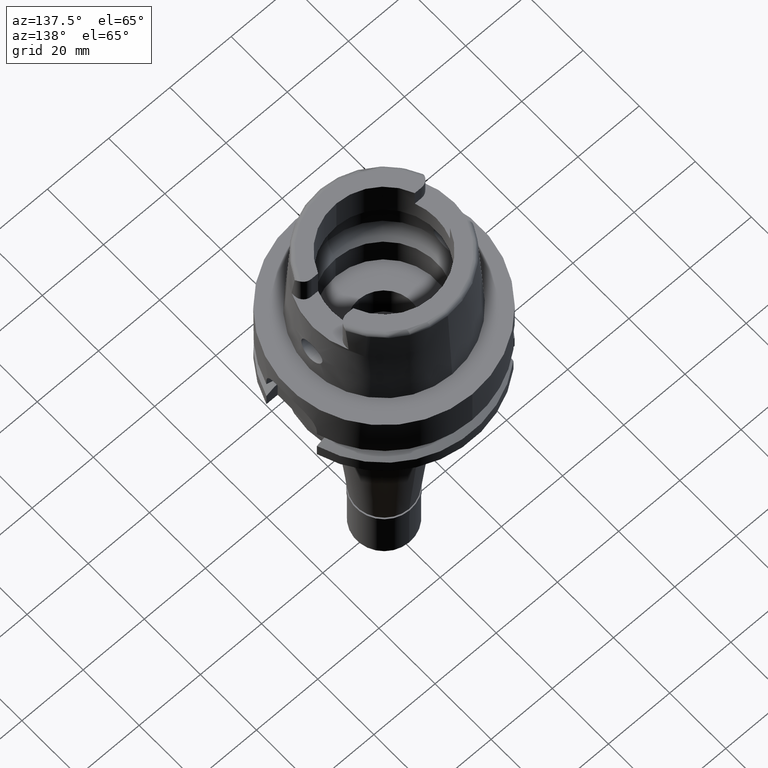
[diagram: clean part render]
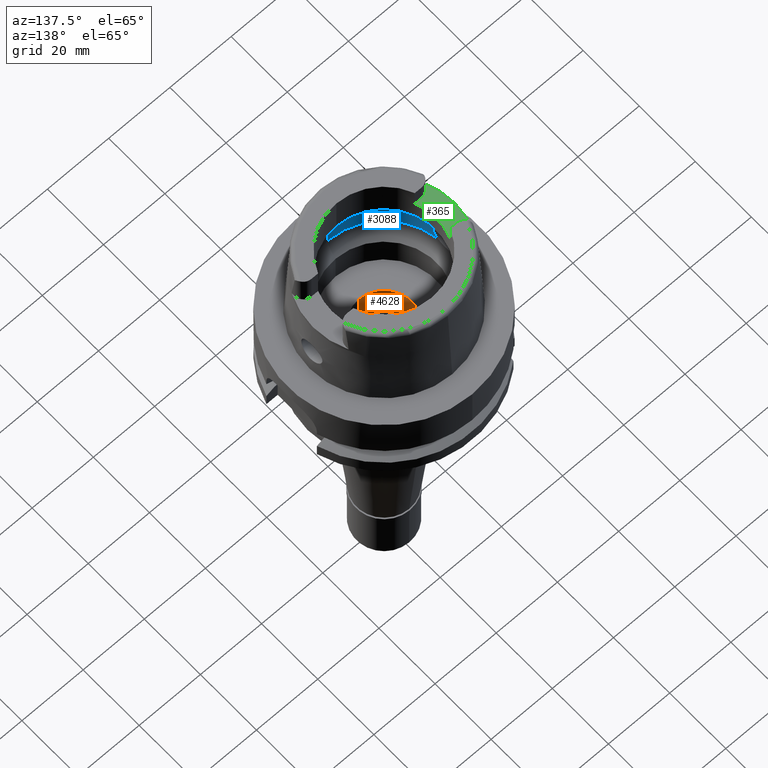
[diagram: same view with three faces highlighted in distinct colors, each labeled with its STEP entity id]
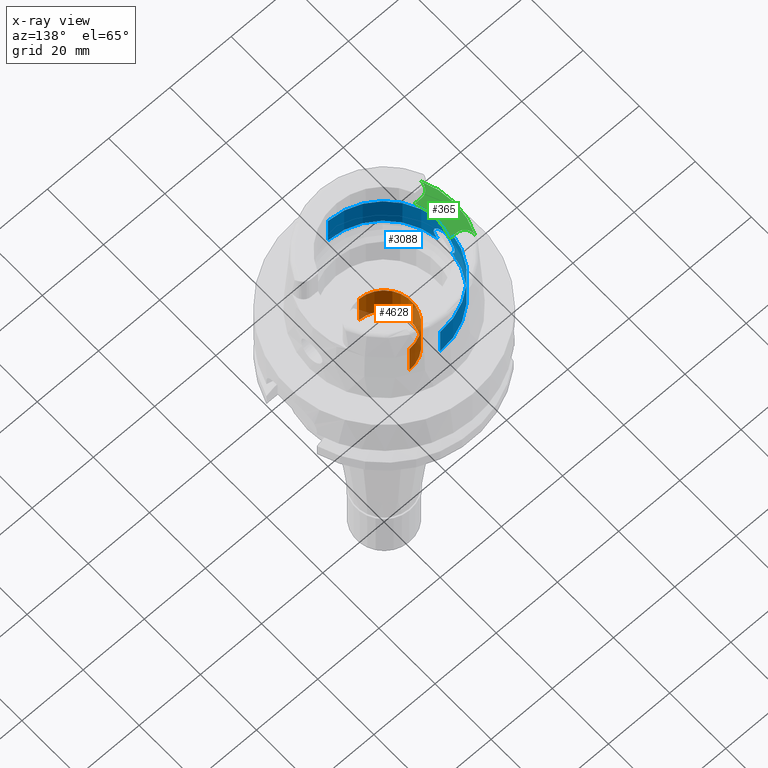
[diagram: x-ray of the same camera — body ghosted, the three highlighted faces saturated]
A machine part, auxiliary view with three faces highlighted in distinct colors.
The next image is the same camera in x-ray (body ghosted, the three faces saturated) — at least one of them is partly hidden behind the body in this view.
Their STEP definitions:

[orange] entity #4628 — the highlighted cylindrical surface (partial cylindrical patch) has radius 9 mm, axis along (0, 0, -1).
#85 = DIRECTION ( 'NONE',  ( 0.0000000000000000000, 0.0000000000000000000, -1.000000000000000000 ) ) ;
#188 = EDGE_CURVE ( 'NONE', #3180, #2209, #3613, .T. ) ;
#528 = DIRECTION ( 'NONE',  ( 0.0000000000000000000, 1.000000000000000000, 0.0000000000000000000 ) ) ;
#610 = DIRECTION ( 'NONE',  ( 0.0000000000000000000, 0.0000000000000000000, 1.000000000000000000 ) ) ;
#830 = AXIS2_PLACEMENT_3D ( 'NONE', #5081, #85, #4170 ) ;
#845 = AXIS2_PLACEMENT_3D ( 'NONE', #3106, #610, #528 ) ;
#953 = CARTESIAN_POINT ( 'NONE',  ( 0.0000000000000000000, -9.000000000000000000, -9.950000000000001066 ) ) ;
#1038 = LINE ( 'NONE', #2178, #4505 ) ;
#1128 = ORIENTED_EDGE ( 'NONE', *, *, #3369, .T. ) ;
#1208 = EDGE_CURVE ( 'NONE', #4342, #2209, #3269, .T. ) ;
#1300 = EDGE_CURVE ( 'NONE', #5235, #4342, #1038, .T. ) ;
#1314 = DIRECTION ( 'NONE',  ( 0.0000000000000000000, 0.0000000000000000000, -1.000000000000000000 ) ) ;
#1366 = CYLINDRICAL_SURFACE ( 'NONE', #830, 9.000000000000000000 ) ;
#1381 = EDGE_LOOP ( 'NONE', ( #2615, #3501, #1128, #2789 ) ) ;
#2178 = CARTESIAN_POINT ( 'NONE',  ( 0.0000000000000000000, 9.000000000000000000, -21.94999999999999929 ) ) ;
#2209 = VERTEX_POINT ( 'NONE', #953 ) ;
#2217 = VECTOR ( 'NONE', #5291, 1000.000000000000000 ) ;
#2297 = CARTESIAN_POINT ( 'NONE',  ( 0.0000000000000000000, -9.000000000000000000, -21.94999999999999929 ) ) ;
#2481 = CIRCLE ( 'NONE', #2834, 9.000000000000000000 ) ;
#2528 = DIRECTION ( 'NONE',  ( 0.0000000000000000000, -1.000000000000000000, 0.0000000000000000000 ) ) ;
#2615 = ORIENTED_EDGE ( 'NONE', *, *, #1208, .T. ) ;
#2789 = ORIENTED_EDGE ( 'NONE', *, *, #1300, .T. ) ;
#2834 = AXIS2_PLACEMENT_3D ( 'NONE', #5053, #1314, #2528 ) ;
#2890 = CARTESIAN_POINT ( 'NONE',  ( 0.0000000000000000000, 9.000000000000000000, -21.94999999999999929 ) ) ;
#3106 = CARTESIAN_POINT ( 'NONE',  ( 0.0000000000000000000, 0.0000000000000000000, -9.950000000000001066 ) ) ;
#3180 = VERTEX_POINT ( 'NONE', #4691 ) ;
#3269 = CIRCLE ( 'NONE', #845, 9.000000000000000000 ) ;
#3369 = EDGE_CURVE ( 'NONE', #3180, #5235, #2481, .T. ) ;
#3477 = FACE_OUTER_BOUND ( 'NONE', #1381, .T. ) ;
#3501 = ORIENTED_EDGE ( 'NONE', *, *, #188, .F. ) ;
#3613 = LINE ( 'NONE', #2297, #2217 ) ;
#3651 = CARTESIAN_POINT ( 'NONE',  ( 0.0000000000000000000, 9.000000000000000000, -9.950000000000001066 ) ) ;
#3874 = DIRECTION ( 'NONE',  ( 0.0000000000000000000, 0.0000000000000000000, 1.000000000000000000 ) ) ;
#4170 = DIRECTION ( 'NONE',  ( 0.0000000000000000000, -1.000000000000000000, 0.0000000000000000000 ) ) ;
#4342 = VERTEX_POINT ( 'NONE', #3651 ) ;
#4505 = VECTOR ( 'NONE', #3874, 1000.000000000000000 ) ;
#4628 = ADVANCED_FACE ( 'NONE', ( #3477 ), #1366, .F. ) ;
#4691 = CARTESIAN_POINT ( 'NONE',  ( 0.0000000000000000000, -9.000000000000000000, -21.94999999999999929 ) ) ;
#5053 = CARTESIAN_POINT ( 'NONE',  ( 0.0000000000000000000, 0.0000000000000000000, -21.94999999999999929 ) ) ;
#5081 = CARTESIAN_POINT ( 'NONE',  ( 0.0000000000000000000, 0.0000000000000000000, 39.37000000000000455 ) ) ;
#5235 = VERTEX_POINT ( 'NONE', #2890 ) ;
#5291 = DIRECTION ( 'NONE',  ( 0.0000000000000000000, 0.0000000000000000000, 1.000000000000000000 ) ) ;

[blue] entity #3088 — the highlighted cylindrical surface (partial cylindrical patch) has radius 20 mm, axis along (0, 0, -1).
#5 = CARTESIAN_POINT ( 'NONE',  ( -19.66196024749880777, -3.661720070425486639, 8.190782839368196733 ) ) ;
#19 = CARTESIAN_POINT ( 'NONE',  ( -19.92158658099085500, 1.820136556152619489, 12.29994162937887836 ) ) ;
#27 = CARTESIAN_POINT ( 'NONE',  ( -19.89436833451610553, -2.053045156930961124, 12.13826361835606704 ) ) ;
#51 = CARTESIAN_POINT ( 'NONE',  ( -19.73467496494282258, 3.248548794668258743, 10.87574576924577130 ) ) ;
#60 = CARTESIAN_POINT ( 'NONE',  ( -19.72028480744285872, -3.333920895591516942, 7.282455604707831043 ) ) ;
#80 = CARTESIAN_POINT ( 'NONE',  ( -19.77935155496618336, 2.962756445005714223, 11.29885090703217365 ) ) ;
#86 = CARTESIAN_POINT ( 'NONE',  ( -19.97160743513772374, -1.064924551475929348, 12.59563355532840667 ) ) ;
#88 = ORIENTED_EDGE ( 'NONE', *, *, #2963, .T. ) ;
#105 = CARTESIAN_POINT ( 'NONE',  ( -19.85086403912583108, 2.430644520605069747, 11.85718513685992193 ) ) ;
#131 = FACE_OUTER_BOUND ( 'NONE', #5334, .T. ) ;
#159 = ORIENTED_EDGE ( 'NONE', *, *, #3067, .T. ) ;
#187 = CARTESIAN_POINT ( 'NONE',  ( 0.0000000000000000000, 0.0000000000000000000, 39.37000000000000455 ) ) ;
#383 = CARTESIAN_POINT ( 'NONE',  ( -19.74139749652900733, 3.205938543897220327, 7.054631262626100963 ) ) ;
#396 = CIRCLE ( 'NONE', #1948, 20.00000000000001421 ) ;
#418 = CARTESIAN_POINT ( 'NONE',  ( -19.84575864665999845, 2.479085262491000030, 6.186348233825000875 ) ) ;
#426 = CARTESIAN_POINT ( 'NONE',  ( -19.65132276798684785, -3.723721195852286225, 9.580998649946268486 ) ) ;
#449 = CARTESIAN_POINT ( 'NONE',  ( -20.00000000000000000, 0.0000000000000000000, 12.75000000000000000 ) ) ;
#451 = CARTESIAN_POINT ( 'NONE',  ( -19.85235822213364543, -2.434144070148053007, 11.85895443194822896 ) ) ;
#470 = ORIENTED_EDGE ( 'NONE', *, *, #4164, .F. ) ;
#474 = CARTESIAN_POINT ( 'NONE',  ( -19.81689720875221639, -2.708443955307053841, 11.59535658252439561 ) ) ;
#498 = CARTESIAN_POINT ( 'NONE',  ( -19.68809426617463032, 3.518533777516454908, 10.29713710895541112 ) ) ;
#506 = CARTESIAN_POINT ( 'NONE',  ( -19.65926970904828863, -3.676378179055857398, 8.258084935742266097 ) ) ;
#519 = VERTEX_POINT ( 'NONE', #3506 ) ;
#524 = CARTESIAN_POINT ( 'NONE',  ( -19.77165548677576012, 3.013857183845654042, 11.23169622626009634 ) ) ;
#534 = CARTESIAN_POINT ( 'NONE',  ( -19.73347738950019448, -3.254522546019890328, 7.136733759208673256 ) ) ;
#551 = CARTESIAN_POINT ( 'NONE',  ( -19.74290537429587644, 3.198125380053106870, 10.96088977213625704 ) ) ;
#732 = B_SPLINE_CURVE_WITH_KNOTS ( 'NONE', 3,
 ( #418, #2067, #4502, #2012, #3183, #1204, #3683, #4854, #1599, #2447, #4111, #383, #2903, #4581, #3405, #1727, #4634, #1284, #2548, #3794, #3821, #3767, #2580, #1750, #1671, #3433, #4276, #904, #5075, #3316, #4611, #5022, #2935, #498, #2094, #879, #961, #51, #551, #4661, #2146, #524, #2964, #2116, #80, #3343, #3021, #1701, #105, #2176, #2522, #19, #4165, #5049, #1329, #3377 ),
 .UNSPECIFIED., .F., .F.,
 ( 4, 2, 2, 2, 1, 1, 1, 2, 2, 2, 2, 1, 2, 2, 2, 2, 2, 1, 1, 2, 2, 2, 2, 1, 1, 2, 2, 2, 2, 2, 2, 4 ),
 ( 0.0000000000000000000, 0.06249999999996930233, 0.09374999999995389799, 0.1093749999999459738, 0.1171874999999420880, 0.1210937499999401312, 0.1230468749999396316, 0.1240234374999396455, 0.1249999999999396594, 0.1874999999999389100, 0.2187499999999385769, 0.2343749999999382438, 0.2421874999999384104, 0.2499999999999386047, 0.3749999999999407696, 0.4374999999999415468, 0.4687499999999419353, 0.4843749999999418798, 0.4921874999999418798, 0.4960937499999418798, 0.4999999999999418243, 0.5624999999999468203, 0.5937499999999495959, 0.6093749999999509281, 0.6171874999999515943, 0.6210937499999520384, 0.6249999999999525935, 0.6874999999999603650, 0.7187499999999644729, 0.7499999999999685807, 0.8749999999999842348, 1.000000000000000000 ),
 .UNSPECIFIED. ) ;
#858 = CARTESIAN_POINT ( 'NONE',  ( -20.00000000000000000, 0.0000000000000000000, 12.75000000000000000 ) ) ;
#879 = CARTESIAN_POINT ( 'NONE',  ( -19.69945940781331473, 3.454791231581033628, 10.46684535103783809 ) ) ;
#886 = CARTESIAN_POINT ( 'NONE',  ( -19.74095328991457876, -3.208675117827837653, 7.059148282840538968 ) ) ;
#904 = CARTESIAN_POINT ( 'NONE',  ( -19.66443747691994304, 3.650826014187962265, 9.861983677059246389 ) ) ;
#910 = CARTESIAN_POINT ( 'NONE',  ( -19.81721443933112781, -2.707589484558639903, 6.387681410927736003 ) ) ;
#942 = CARTESIAN_POINT ( 'NONE',  ( -19.70155893500701438, -3.443033485245206027, 10.49835442281335318 ) ) ;
#961 = CARTESIAN_POINT ( 'NONE',  ( -19.71196256676224223, 3.384522111906027586, 10.62587697036250312 ) ) ;
#968 = CARTESIAN_POINT ( 'NONE',  ( -19.79874188325397100, -2.835848574125672705, 11.45412387156707545 ) ) ;
#1032 = DIRECTION ( 'NONE',  ( 0.0000000000000000000, -1.000000000000000000, 0.0000000000000000000 ) ) ;
#1166 = EDGE_CURVE ( 'NONE', #3409, #5042, #1515, .T. ) ;
#1204 = CARTESIAN_POINT ( 'NONE',  ( -19.75172576718740203, 3.142941349337210255, 6.954144166451294851 ) ) ;
#1261 = CARTESIAN_POINT ( 'NONE',  ( -19.74050221243378900, -3.211455829723269151, 7.063750484204940783 ) ) ;
#1284 = CARTESIAN_POINT ( 'NONE',  ( -19.68383709500267642, 3.542833394193697139, 7.767602803325093674 ) ) ;
#1291 = CARTESIAN_POINT ( 'NONE',  ( -19.98067574458150020, -0.8798093234653254768, 12.64564165222719971 ) ) ;
#1316 = CARTESIAN_POINT ( 'NONE',  ( -19.78483275663007035, -2.927859734515844803, 11.34356295429619088 ) ) ;
#1329 = CARTESIAN_POINT ( 'NONE',  ( -19.99999999999999289, 0.3697421889542340523, 12.75000000000000000 ) ) ;
#1336 = CARTESIAN_POINT ( 'NONE',  ( -19.70897051419402146, -3.400666924062230478, 7.416360639844333136 ) ) ;
#1368 = CARTESIAN_POINT ( 'NONE',  ( -19.99742343261086575, -0.3685791477801201310, 12.73657481896783672 ) ) ;
#1436 = CARTESIAN_POINT ( 'NONE',  ( 0.0000000000000000000, -20.00000000000000000, 6.186348233825000875 ) ) ;
#1465 = ORIENTED_EDGE ( 'NONE', *, *, #4123, .T. ) ;
#1466 = CARTESIAN_POINT ( 'NONE',  ( 0.0000000000000000000, 20.00000000000000000, 6.186348233825000875 ) ) ;
#1480 = CARTESIAN_POINT ( 'NONE',  ( 0.0000000000000000000, 20.00000000000000000, 17.26397459622000241 ) ) ;
#1515 = B_SPLINE_CURVE_WITH_KNOTS ( 'NONE', 3,
 ( #858, #1758, #1368, #4228, #3851, #1291, #2944, #4172, #86, #3804, #4201, #2184, #2530, #3443, #2157, #3773, #5115, #27, #3032, #2970, #4703, #1681, #451, #4259, #474, #2590, #968, #3750, #1316, #2613, #3828, #2507, #942, #3353, #426, #1734, #5031, #1657, #3325, #3412, #506, #5, #2126, #2076, #4617, #4673, #5082, #1336, #60, #2100, #534, #5001, #3385, #2997, #1261, #886, #1710, #5056, #4640, #910, #2558 ),
 .UNSPECIFIED., .F., .F.,
 ( 4, 2, 2, 1, 1, 2, 2, 2, 2, 1, 1, 2, 2, 2, 2, 2, 2, 2, 2, 2, 2, 2, 1, 2, 2, 2, 2, 1, 1, 1, 1, 2, 2, 2, 4 ),
 ( 0.0000000000000000000, 0.06249999999999843181, 0.09374999999999766853, 0.1093749999999972522, 0.1171874999999970995, 0.1210937499999970302, 0.1249999999999969469, 0.1874999999999974742, 0.2187499999999979183, 0.2343749999999980294, 0.2421874999999980294, 0.2460937499999981404, 0.2499999999999982236, 0.3125000000000015543, 0.3437500000000033862, 0.3593750000000043299, 0.3750000000000052180, 0.4375000000000093259, 0.5000000000000134337, 0.6250000000000222045, 0.6875000000000263123, 0.7187500000000280886, 0.7343750000000289768, 0.7421875000000296430, 0.7500000000000303091, 0.8125000000000363043, 0.8437500000000393019, 0.8593750000000407452, 0.8671875000000414113, 0.8710937500000418554, 0.8730468750000419664, 0.8740234375000418554, 0.8750000000000418554, 0.9375000000000209832, 1.000000000000000000 ),
 .UNSPECIFIED. ) ;
#1599 = CARTESIAN_POINT ( 'NONE',  ( -19.74408197365325535, 3.189507712982237120, 7.027753376479042302 ) ) ;
#1657 = CARTESIAN_POINT ( 'NONE',  ( -19.65056778371919677, -3.724541277720386123, 8.554018805257962654 ) ) ;
#1671 = CARTESIAN_POINT ( 'NONE',  ( -19.64342102749962748, 3.765030220294911079, 8.831896861846784574 ) ) ;
#1681 = CARTESIAN_POINT ( 'NONE',  ( -19.86957894625532717, -2.285807393788554798, 11.97888609334855303 ) ) ;
#1701 = CARTESIAN_POINT ( 'NONE',  ( -19.84200668832605885, 2.502326833197712652, 11.79461985101925769 ) ) ;
#1710 = CARTESIAN_POINT ( 'NONE',  ( -19.74741042856391360, -3.168852578877737969, 6.993359328543429676 ) ) ;
#1727 = CARTESIAN_POINT ( 'NONE',  ( -19.70827425312384307, 3.405308951745376511, 7.418193022220815891 ) ) ;
#1734 = CARTESIAN_POINT ( 'NONE',  ( -19.64540542308788318, -3.754657844809986766, 9.018281474956083343 ) ) ;
#1750 = CARTESIAN_POINT ( 'NONE',  ( -19.64954716480991692, 3.728742102114960932, 8.458464559480782796 ) ) ;
#1758 = CARTESIAN_POINT ( 'NONE',  ( -20.00000000000000000, -0.1830374027275975257, 12.75000000000000178 ) ) ;
#1779 = DIRECTION ( 'NONE',  ( 0.0000000000000000000, 0.0000000000000000000, 1.000000000000000000 ) ) ;
#1915 = VERTEX_POINT ( 'NONE', #3101 ) ;
#1948 = AXIS2_PLACEMENT_3D ( 'NONE', #3268, #2816, #3240 ) ;
#1987 = CARTESIAN_POINT ( 'NONE',  ( -19.84575864665999845, -2.479085262491000030, 6.186348233825000875 ) ) ;
#2012 = CARTESIAN_POINT ( 'NONE',  ( -19.76800539640650101, 3.041645519385683283, 6.804563479175809171 ) ) ;
#2060 = CARTESIAN_POINT ( 'NONE',  ( 0.0000000000000000000, 20.00000000000000000, 6.186348233825000875 ) ) ;
#2067 = CARTESIAN_POINT ( 'NONE',  ( -19.81720445921022744, 2.707669378195588283, 6.387751804549401058 ) ) ;
#2076 = CARTESIAN_POINT ( 'NONE',  ( -19.66489324401530681, -3.645798712243137452, 8.121881304959334358 ) ) ;
#2079 = ORIENTED_EDGE ( 'NONE', *, *, #5069, .F. ) ;
#2094 = CARTESIAN_POINT ( 'NONE',  ( -19.68897814375808153, 3.513576952984294621, 10.31048599730038617 ) ) ;
#2100 = CARTESIAN_POINT ( 'NONE',  ( -19.72618078752373094, -3.298772090235122967, 7.215285736698796804 ) ) ;
#2113 = DIRECTION ( 'NONE',  ( 0.0000000000000000000, 0.0000000000000000000, -1.000000000000000000 ) ) ;
#2116 = CARTESIAN_POINT ( 'NONE',  ( -19.77790227802251266, 2.972427968619522076, 11.28634230070763422 ) ) ;
#2126 = CARTESIAN_POINT ( 'NONE',  ( -19.66383279512244187, -3.651545459906774926, 8.146043302355408855 ) ) ;
#2128 = VERTEX_POINT ( 'NONE', #2772 ) ;
#2146 = CARTESIAN_POINT ( 'NONE',  ( -19.76315527148401685, 3.069536634647461515, 11.15533732831224434 ) ) ;
#2157 = CARTESIAN_POINT ( 'NONE',  ( -19.92059286601120149, -1.781155040627679265, 12.30151905550233060 ) ) ;
#2176 = CARTESIAN_POINT ( 'NONE',  ( -19.86862495637770465, 2.282732825389082620, 11.97668784721070345 ) ) ;
#2184 = CARTESIAN_POINT ( 'NONE',  ( -19.96014161960296462, -1.270885893305002234, 12.53204756573847156 ) ) ;
#2213 = VECTOR ( 'NONE', #3103, 1000.000000000000000 ) ;
#2258 = LINE ( 'NONE', #1436, #2213 ) ;
#2343 = AXIS2_PLACEMENT_3D ( 'NONE', #5385, #2113, #2881 ) ;
#2368 = VERTEX_POINT ( 'NONE', #1480 ) ;
#2447 = CARTESIAN_POINT ( 'NONE',  ( -19.74246152409659416, 3.199407991994077438, 7.043898020967527707 ) ) ;
#2507 = CARTESIAN_POINT ( 'NONE',  ( -19.71528923512004994, -3.361056488591420699, 10.67384906870306516 ) ) ;
#2522 = CARTESIAN_POINT ( 'NONE',  ( -19.87767235113738806, 2.205242223473267593, 12.03449459973693081 ) ) ;
#2530 = CARTESIAN_POINT ( 'NONE',  ( -19.94877727865467421, -1.438050476429465929, 12.46848411337186491 ) ) ;
#2548 = CARTESIAN_POINT ( 'NONE',  ( -19.67634535197403522, 3.583810239029153522, 7.895103173153098730 ) ) ;
#2558 = CARTESIAN_POINT ( 'NONE',  ( -19.84575864665999845, -2.479085262491000030, 6.186348233825000875 ) ) ;
#2580 = CARTESIAN_POINT ( 'NONE',  ( -19.66678412835874568, 3.635577116849903589, 8.080432954028555770 ) ) ;
#2590 = CARTESIAN_POINT ( 'NONE',  ( -19.80330195556890871, -2.804498991971097865, 11.48988885623557721 ) ) ;
#2613 = CARTESIAN_POINT ( 'NONE',  ( -19.76218569956651550, -3.070486696400240412, 11.16078934170093362 ) ) ;
#2630 = DIRECTION ( 'NONE',  ( 0.0000000000000000000, 1.000000000000000000, 0.0000000000000000000 ) ) ;
#2730 = VECTOR ( 'NONE', #4795, 1000.000000000000000 ) ;
#2772 = CARTESIAN_POINT ( 'NONE',  ( 0.0000000000000000000, -20.00000000000000000, 6.186348233825000875 ) ) ;
#2816 = DIRECTION ( 'NONE',  ( 0.0000000000000000000, 0.0000000000000000000, -1.000000000000000000 ) ) ;
#2881 = DIRECTION ( 'NONE',  ( 0.0000000000000000000, -1.000000000000000000, 0.0000000000000000000 ) ) ;
#2903 = CARTESIAN_POINT ( 'NONE',  ( -19.74119308675011197, 3.207196494403045772, 7.056705859143715287 ) ) ;
#2935 = CARTESIAN_POINT ( 'NONE',  ( -19.68662342437099255, 3.526780936312412518, 10.27454338891100605 ) ) ;
#2944 = CARTESIAN_POINT ( 'NONE',  ( -19.97753555307598461, -0.9493749229898147401, 12.62838965606890618 ) ) ;
#2963 = EDGE_CURVE ( 'NONE', #2128, #5042, #3920, .T. ) ;
#2964 = CARTESIAN_POINT ( 'NONE',  ( -19.77539119383706989, 2.989117935971723483, 11.26447855134218123 ) ) ;
#2970 = CARTESIAN_POINT ( 'NONE',  ( -19.88866688963722140, -2.107477370787168791, 12.10180777658723628 ) ) ;
#2997 = CARTESIAN_POINT ( 'NONE',  ( -19.73995366024477960, -3.214834176857670034, 7.069364884555334960 ) ) ;
#3021 = CARTESIAN_POINT ( 'NONE',  ( -19.81550395940524822, 2.709931638705325607, 11.59902467878869459 ) ) ;
#3032 = CARTESIAN_POINT ( 'NONE',  ( -19.89095883369450135, -2.085707927097196102, 12.11648757323384196 ) ) ;
#3067 = EDGE_CURVE ( 'NONE', #2368, #519, #4352, .T. ) ;
#3088 = ADVANCED_FACE ( 'NONE', ( #131 ), #3842, .F. ) ;
#3101 = CARTESIAN_POINT ( 'NONE',  ( -19.84575864665999845, 2.479085262491000030, 6.186348233825000875 ) ) ;
#3102 = DIRECTION ( 'NONE',  ( 0.0000000000000000000, 0.0000000000000000000, -1.000000000000000000 ) ) ;
#3103 = DIRECTION ( 'NONE',  ( 0.0000000000000000000, 8.659189811027998955E-14, 1.000000000000000000 ) ) ;
#3183 = CARTESIAN_POINT ( 'NONE',  ( -19.76066155450057593, 3.087763051679031978, 6.870999059455045632 ) ) ;
#3240 = DIRECTION ( 'NONE',  ( -0.9922879323327794543, 0.1239542631244973381, 0.0000000000000000000 ) ) ;
#3268 = CARTESIAN_POINT ( 'NONE',  ( 0.0000000000000000000, 0.0000000000000000000, 6.186348233825000875 ) ) ;
#3316 = CARTESIAN_POINT ( 'NONE',  ( -19.67575397191043862, 3.587661714841302807, 10.09246184363802712 ) ) ;
#3325 = CARTESIAN_POINT ( 'NONE',  ( -19.65273577250077253, -3.712391166743284732, 8.462271407313068039 ) ) ;
#3343 = CARTESIAN_POINT ( 'NONE',  ( -19.79792790476268749, 2.838396307254666073, 11.45808160370312656 ) ) ;
#3353 = CARTESIAN_POINT ( 'NONE',  ( -19.66536114596662443, -3.646001608969120955, 9.957786246994009716 ) ) ;
#3377 = CARTESIAN_POINT ( 'NONE',  ( -20.00000000000000000, 0.0000000000000000000, 12.75000000000000000 ) ) ;
#3385 = CARTESIAN_POINT ( 'NONE',  ( -19.73913269784763713, -3.219886689848268535, 7.077786526257662914 ) ) ;
#3405 = CARTESIAN_POINT ( 'NONE',  ( -19.72335944578466638, 3.317162635733305720, 7.238452612100627626 ) ) ;
#3409 = VERTEX_POINT ( 'NONE', #449 ) ;
#3412 = CARTESIAN_POINT ( 'NONE',  ( -19.65693401955254416, -3.689208492896102420, 8.325933423525599508 ) ) ;
#3433 = CARTESIAN_POINT ( 'NONE',  ( -19.64937715234364646, 3.733899912088827211, 9.394707806739083011 ) ) ;
#3443 = CARTESIAN_POINT ( 'NONE',  ( -19.92809361340097851, -1.694661713830789118, 12.34657877242477397 ) ) ;
#3506 = CARTESIAN_POINT ( 'NONE',  ( 0.0000000000000000000, -20.00000000000000000, 17.26397459622000241 ) ) ;
#3513 = LINE ( 'NONE', #1466, #2730 ) ;
#3683 = CARTESIAN_POINT ( 'NONE',  ( -19.74909383400727947, 3.158992222811245476, 6.979121475390861029 ) ) ;
#3750 = CARTESIAN_POINT ( 'NONE',  ( -19.78956509611641579, -2.897164855132418726, 11.38142749512797636 ) ) ;
#3767 = CARTESIAN_POINT ( 'NONE',  ( -19.66767022583595192, 3.630792343530946820, 8.061755777097850739 ) ) ;
#3773 = CARTESIAN_POINT ( 'NONE',  ( -19.90843245646873783, -1.911487754341263612, 12.22664297733000005 ) ) ;
#3794 = CARTESIAN_POINT ( 'NONE',  ( -19.67283836492640248, 3.602859295254698946, 7.958282118311765352 ) ) ;
#3804 = CARTESIAN_POINT ( 'NONE',  ( -19.97035941030860329, -1.087991353669898631, 12.58872118990585953 ) ) ;
#3821 = CARTESIAN_POINT ( 'NONE',  ( -19.66968970457880417, 3.619880684907424317, 8.020500591788659150 ) ) ;
#3828 = CARTESIAN_POINT ( 'NONE',  ( -19.74555934841687943, -3.175023028459864616, 11.00442016380054078 ) ) ;
#3842 = CYLINDRICAL_SURFACE ( 'NONE', #4440, 20.00000000000000000 ) ;
#3851 = CARTESIAN_POINT ( 'NONE',  ( -19.98647302120704694, -0.7405267939923131371, 12.67738902970857495 ) ) ;
#3920 = CIRCLE ( 'NONE', #2343, 20.00000000000000000 ) ;
#4111 = CARTESIAN_POINT ( 'NONE',  ( -19.74170817364957742, 3.204028385776988230, 7.051484459670502858 ) ) ;
#4123 = EDGE_CURVE ( 'NONE', #4416, #2368, #3513, .T. ) ;
#4164 = EDGE_CURVE ( 'NONE', #2128, #519, #2258, .T. ) ;
#4165 = CARTESIAN_POINT ( 'NONE',  ( -19.94912526910963990, 1.477053608227051562, 12.46786713866191576 ) ) ;
#4172 = CARTESIAN_POINT ( 'NONE',  ( -19.97344927823229099, -1.030302235349707551, 12.60582713086796325 ) ) ;
#4201 = CARTESIAN_POINT ( 'NONE',  ( -19.96963991456336629, -1.101044773657175790, 12.58473288045517435 ) ) ;
#4228 = CARTESIAN_POINT ( 'NONE',  ( -19.98969373044346298, -0.6474711021227954610, 12.69487708366551004 ) ) ;
#4259 = CARTESIAN_POINT ( 'NONE',  ( -19.82584742585908089, -2.641731283860129231, 11.66323117160772327 ) ) ;
#4276 = CARTESIAN_POINT ( 'NONE',  ( -19.65388674909321765, 3.709331165325826962, 9.582707548857129609 ) ) ;
#4352 = CIRCLE ( 'NONE', #4709, 20.00000000000000000 ) ;
#4383 = ORIENTED_EDGE ( 'NONE', *, *, #4565, .T. ) ;
#4416 = VERTEX_POINT ( 'NONE', #2060 ) ;
#4440 = AXIS2_PLACEMENT_3D ( 'NONE', #187, #3102, #1032 ) ;
#4502 = CARTESIAN_POINT ( 'NONE',  ( -19.79419687321563259, 2.868810270552525132, 6.577475787150340203 ) ) ;
#4563 = ORIENTED_EDGE ( 'NONE', *, *, #1166, .F. ) ;
#4565 = EDGE_CURVE ( 'NONE', #1915, #4416, #396, .T. ) ;
#4581 = CARTESIAN_POINT ( 'NONE',  ( -19.74126825963656628, 3.206732319066041281, 7.055937602687010646 ) ) ;
#4611 = CARTESIAN_POINT ( 'NONE',  ( -19.67957488283660439, 3.566282307827183029, 10.16110460878510580 ) ) ;
#4617 = CARTESIAN_POINT ( 'NONE',  ( -19.67326667945649632, -3.600530094029106287, 7.938450481840925832 ) ) ;
#4634 = CARTESIAN_POINT ( 'NONE',  ( -19.68946861559959771, 3.511676168785394125, 7.681073891936409659 ) ) ;
#4640 = CARTESIAN_POINT ( 'NONE',  ( -19.79421683432078183, -2.868663948532231167, 6.577311839375206581 ) ) ;
#4661 = CARTESIAN_POINT ( 'NONE',  ( -19.75624040326475850, 3.113840710152322444, 11.09024991162544893 ) ) ;
#4673 = CARTESIAN_POINT ( 'NONE',  ( -19.68325729005076496, -3.546810159536054385, 7.767786943550404111 ) ) ;
#4703 = CARTESIAN_POINT ( 'NONE',  ( -19.88739450431940980, -2.119451192537781470, 12.09363345630605124 ) ) ;
#4709 = AXIS2_PLACEMENT_3D ( 'NONE', #5157, #1779, #2630 ) ;
#4795 = DIRECTION ( 'NONE',  ( 0.0000000000000000000, -8.659189811027998955E-14, 1.000000000000000000 ) ) ;
#4854 = CARTESIAN_POINT ( 'NONE',  ( -19.74566592812352184, 3.179869713825074662, 7.012262826264465509 ) ) ;
#5001 = CARTESIAN_POINT ( 'NONE',  ( -19.73723018012562491, -3.231571074794255427, 7.097436891680587223 ) ) ;
#5022 = CARTESIAN_POINT ( 'NONE',  ( -19.68444674238977044, 3.538983957955917248, 10.24060615407706898 ) ) ;
#5031 = CARTESIAN_POINT ( 'NONE',  ( -19.64595634513333522, -3.750786648821366587, 8.831099623891594419 ) ) ;
#5042 = VERTEX_POINT ( 'NONE', #1987 ) ;
#5049 = CARTESIAN_POINT ( 'NONE',  ( -19.98901725381923811, 0.7490706239279305567, 12.69414172080009706 ) ) ;
#5056 = CARTESIAN_POINT ( 'NONE',  ( -19.75931482893718183, -3.098994408684831114, 6.879885751149189765 ) ) ;
#5069 = EDGE_CURVE ( 'NONE', #1915, #3409, #732, .T. ) ;
#5075 = CARTESIAN_POINT ( 'NONE',  ( -19.66858544164589873, 3.627720868789728215, 9.954619891852049207 ) ) ;
#5082 = CARTESIAN_POINT ( 'NONE',  ( -19.70206454124530637, -3.440427089249093573, 7.505045393789741226 ) ) ;
#5115 = CARTESIAN_POINT ( 'NONE',  ( -19.90212492958304225, -1.976800070372711993, 12.18738408355483571 ) ) ;
#5157 = CARTESIAN_POINT ( 'NONE',  ( 0.0000000000000000000, 0.0000000000000000000, 17.26397459622000241 ) ) ;
#5334 = EDGE_LOOP ( 'NONE', ( #2079, #4383, #1465, #159, #470, #88, #4563 ) ) ;
#5385 = CARTESIAN_POINT ( 'NONE',  ( 0.0000000000000000000, 0.0000000000000000000, 6.186348233825000875 ) ) ;

[green] entity #365 — the highlighted planar face has unit normal (0, 0, 1).
#59 = DIRECTION ( 'NONE',  ( 0.0000000000000000000, 0.0000000000000000000, 1.000000000000000000 ) ) ;
#130 = AXIS2_PLACEMENT_3D ( 'NONE', #3060, #59, #3827 ) ;
#259 = VECTOR ( 'NONE', #3947, 1000.000000000000000 ) ;
#365 = ADVANCED_FACE ( 'NONE', ( #1741 ), #1404, .T. ) ;
#409 = VERTEX_POINT ( 'NONE', #566 ) ;
#562 = VERTEX_POINT ( 'NONE', #621 ) ;
#566 = CARTESIAN_POINT ( 'NONE',  ( -20.87000294699999969, -9.702199254896999747, 26.00000000000000000 ) ) ;
#621 = CARTESIAN_POINT ( 'NONE',  ( -17.98999999999999844, -6.270000000000000462, 26.00000000000000000 ) ) ;
#638 = EDGE_CURVE ( 'NONE', #409, #3519, #4488, .T. ) ;
#712 = CARTESIAN_POINT ( 'NONE',  ( -17.98999999999999844, 6.270000000000000462, 26.00000000000000000 ) ) ;
#734 = LINE ( 'NONE', #2337, #3039 ) ;
#752 = DIRECTION ( 'NONE',  ( -0.9294994374136111848, 0.3688235294118045182, 0.0000000000000000000 ) ) ;
#767 = CARTESIAN_POINT ( 'NONE',  ( -20.87000000000000099, -9.150000000000000355, 26.00000000000000000 ) ) ;
#959 = CARTESIAN_POINT ( 'NONE',  ( -15.80149043602999903, -6.270000000000000462, 26.00000000000000000 ) ) ;
#964 = AXIS2_PLACEMENT_3D ( 'NONE', #1410, #4718, #5134 ) ;
#996 = DIRECTION ( 'NONE',  ( 0.0000000000000000000, 0.0000000000000000000, 1.000000000000000000 ) ) ;
#1003 = AXIS2_PLACEMENT_3D ( 'NONE', #2167, #996, #5126 ) ;
#1079 = ORIENTED_EDGE ( 'NONE', *, *, #1984, .F. ) ;
#1111 = VERTEX_POINT ( 'NONE', #1390 ) ;
#1163 = DIRECTION ( 'NONE',  ( -5.336849309449779917E-06, -0.9999999999857590582, -7.077128431393709918E-14 ) ) ;
#1185 = CARTESIAN_POINT ( 'NONE',  ( -15.80149043602999903, 6.270000000000000462, 26.00000000000000000 ) ) ;
#1390 = CARTESIAN_POINT ( 'NONE',  ( -20.87000000000000099, 9.150000000000000355, 26.00000000000000000 ) ) ;
#1404 = PLANE ( 'NONE',  #1003 ) ;
#1410 = CARTESIAN_POINT ( 'NONE',  ( -17.98999999999999844, 9.150000000000000355, 26.00000000000000000 ) ) ;
#1459 = VECTOR ( 'NONE', #1163, 1000.000000000000000 ) ;
#1661 = DIRECTION ( 'NONE',  ( 0.0000000000000000000, 0.0000000000000000000, 1.000000000000000000 ) ) ;
#1741 = FACE_OUTER_BOUND ( 'NONE', #5166, .T. ) ;
#1787 = CARTESIAN_POINT ( 'NONE',  ( -20.87000000000000099, 9.702213322398998585, 26.00000000000000000 ) ) ;
#1819 = ORIENTED_EDGE ( 'NONE', *, *, #4890, .F. ) ;
#1891 = LINE ( 'NONE', #3969, #1459 ) ;
#1984 = EDGE_CURVE ( 'NONE', #2761, #409, #1891, .T. ) ;
#1998 = DIRECTION ( 'NONE',  ( 0.0000000000000000000, 0.0000000000000000000, -1.000000000000000000 ) ) ;
#2075 = CARTESIAN_POINT ( 'NONE',  ( -17.98999999999999844, 6.270000000000000462, 26.00000000000000000 ) ) ;
#2105 = CARTESIAN_POINT ( 'NONE',  ( 0.0000000000000000000, 0.0000000000000000000, 26.00000000000000000 ) ) ;
#2167 = CARTESIAN_POINT ( 'NONE',  ( 0.0000000000000000000, 0.0000000000000000000, 26.00000000000000000 ) ) ;
#2279 = LINE ( 'NONE', #2712, #259 ) ;
#2337 = CARTESIAN_POINT ( 'NONE',  ( -20.86999931535000385, 9.702216590587999789, 26.00000000000000000 ) ) ;
#2387 = DIRECTION ( 'NONE',  ( -1.239829746047039429E-06, -0.9999999999992315036, 7.076906259765214421E-14 ) ) ;
#2423 = CIRCLE ( 'NONE', #5324, 17.00000000000000000 ) ;
#2445 = ORIENTED_EDGE ( 'NONE', *, *, #2760, .F. ) ;
#2539 = VERTEX_POINT ( 'NONE', #1185 ) ;
#2560 = EDGE_CURVE ( 'NONE', #2539, #4036, #2423, .T. ) ;
#2712 = CARTESIAN_POINT ( 'NONE',  ( -15.80149043602999903, -6.270000000000000462, 26.00000000000000000 ) ) ;
#2760 = EDGE_CURVE ( 'NONE', #3519, #1111, #734, .T. ) ;
#2761 = VERTEX_POINT ( 'NONE', #767 ) ;
#2817 = ORIENTED_EDGE ( 'NONE', *, *, #2560, .F. ) ;
#2883 = LINE ( 'NONE', #712, #2913 ) ;
#2913 = VECTOR ( 'NONE', #4968, 1000.000000000000000 ) ;
#3039 = VECTOR ( 'NONE', #2387, 999.9999999999998863 ) ;
#3060 = CARTESIAN_POINT ( 'NONE',  ( -17.98999999999999844, -9.150000000000000355, 26.00000000000000000 ) ) ;
#3096 = EDGE_CURVE ( 'NONE', #4036, #562, #2279, .T. ) ;
#3124 = EDGE_CURVE ( 'NONE', #1111, #4468, #3660, .T. ) ;
#3179 = AXIS2_PLACEMENT_3D ( 'NONE', #4891, #1998, #3751 ) ;
#3519 = VERTEX_POINT ( 'NONE', #1787 ) ;
#3660 = CIRCLE ( 'NONE', #964, 2.880000000000000782 ) ;
#3751 = DIRECTION ( 'NONE',  ( -0.9068002397791221636, -0.4215605829967106200, 0.0000000000000000000 ) ) ;
#3827 = DIRECTION ( 'NONE',  ( 0.0000000000000000000, 1.000000000000000000, 0.0000000000000000000 ) ) ;
#3947 = DIRECTION ( 'NONE',  ( -1.000000000000000000, 8.644330667353000255E-14, 0.0000000000000000000 ) ) ;
#3969 = CARTESIAN_POINT ( 'NONE',  ( -20.87000000000000099, -9.150000000000000355, 26.00000000000000000 ) ) ;
#4029 = ORIENTED_EDGE ( 'NONE', *, *, #4623, .F. ) ;
#4036 = VERTEX_POINT ( 'NONE', #959 ) ;
#4132 = ORIENTED_EDGE ( 'NONE', *, *, #3124, .F. ) ;
#4424 = ORIENTED_EDGE ( 'NONE', *, *, #638, .F. ) ;
#4468 = VERTEX_POINT ( 'NONE', #2075 ) ;
#4488 = CIRCLE ( 'NONE', #3179, 23.01499170873999134 ) ;
#4623 = EDGE_CURVE ( 'NONE', #562, #2761, #5009, .T. ) ;
#4718 = DIRECTION ( 'NONE',  ( 0.0000000000000000000, 0.0000000000000000000, 1.000000000000000000 ) ) ;
#4859 = ORIENTED_EDGE ( 'NONE', *, *, #3096, .F. ) ;
#4890 = EDGE_CURVE ( 'NONE', #4468, #2539, #2883, .T. ) ;
#4891 = CARTESIAN_POINT ( 'NONE',  ( 0.0000000000000000000, 0.0000000000000000000, 26.00000000000000000 ) ) ;
#4968 = DIRECTION ( 'NONE',  ( 1.000000000000000000, 8.644330667353000255E-14, 0.0000000000000000000 ) ) ;
#5009 = CIRCLE ( 'NONE', #130, 2.880000000000000782 ) ;
#5126 = DIRECTION ( 'NONE',  ( 1.000000000000000000, 0.0000000000000000000, 0.0000000000000000000 ) ) ;
#5134 = DIRECTION ( 'NONE',  ( -1.000000000000000000, 0.0000000000000000000, 0.0000000000000000000 ) ) ;
#5166 = EDGE_LOOP ( 'NONE', ( #1819, #4132, #2445, #4424, #1079, #4029, #4859, #2817 ) ) ;
#5324 = AXIS2_PLACEMENT_3D ( 'NONE', #2105, #1661, #752 ) ;